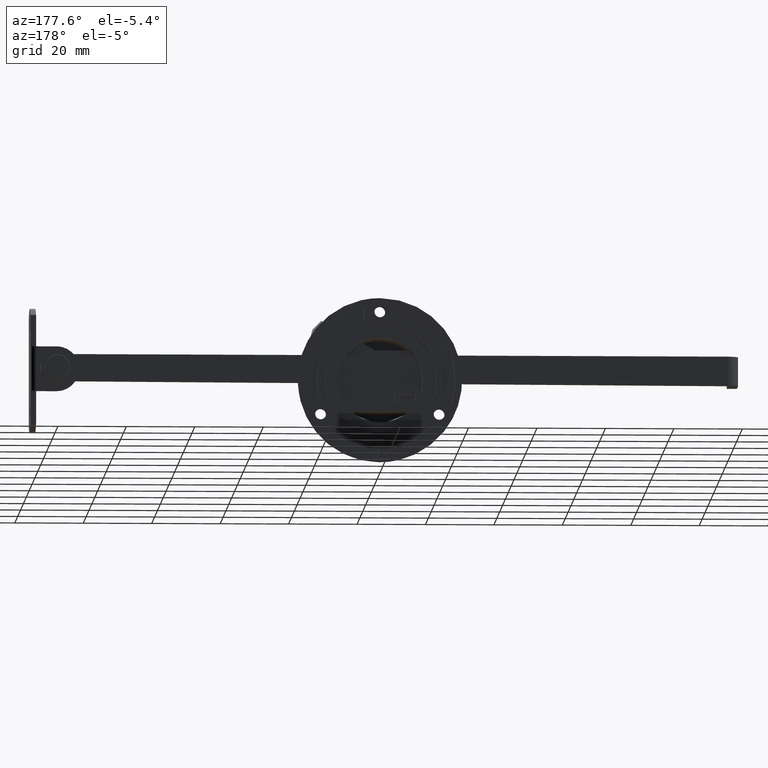
[diagram: clean part render]
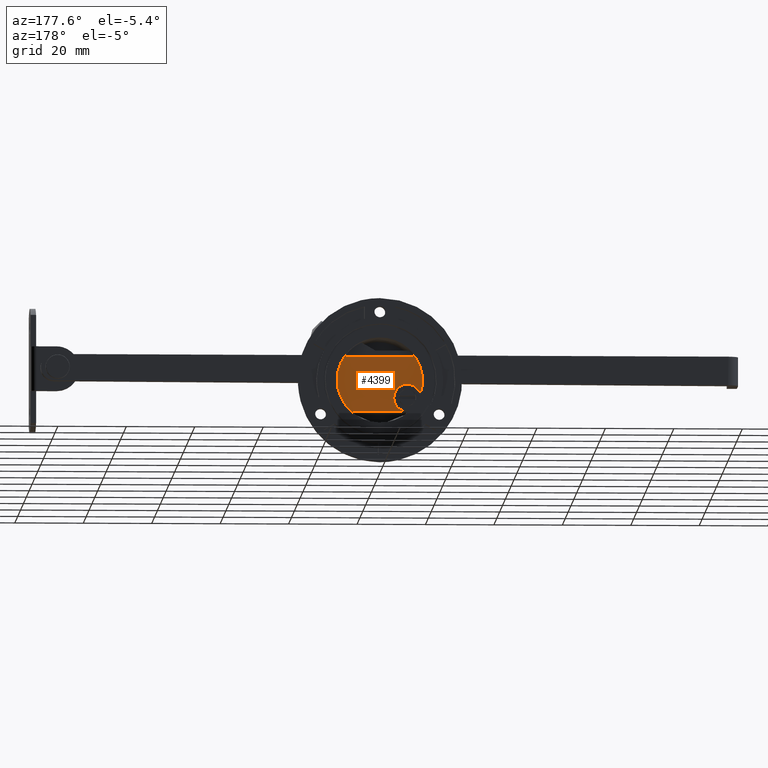
[diagram: same view with one face highlighted and labeled with its STEP entity id]
A machine part, auxiliary view. The second image highlights one B-rep face of the part: STEP entity #4399.
In plain terms, the highlighted face is a freeform B-spline surface patch.
Its self-contained STEP definition (entity closure, byte-faithful):
#4228=CARTESIAN_POINT('',(-9.367496997597531,-1.800000000000025,7.0));
#4229=VERTEX_POINT('',#4228);
#4230=CARTESIAN_POINT('',(9.367496997597531,-1.800000000000025,7.0));
#4231=VERTEX_POINT('',#4230);
#4232=CARTESIAN_POINT('',(-9.367496997597531,-1.800000000000025,7.0));
#4233=CARTESIAN_POINT('',(9.367496997597531,-1.800000000000025,7.0));
#4234=QUASI_UNIFORM_CURVE('',1,(#4232,#4233),.UNSPECIFIED.,.F.,.U.);
#4235=EDGE_CURVE('',#4229,#4231,#4234,.T.);
#4259=CARTESIAN_POINT('',(13.748749288366289,-1.800000000000000,-10.780364549011150));
#4260=CARTESIAN_POINT('',(-13.748737476144790,-1.800000000000000,-10.780364549011150));
#4261=CARTESIAN_POINT('',(13.748749288366289,-1.800000000000000,8.697031690652423));
#4262=CARTESIAN_POINT('',(-13.748737476144790,-1.800000000000000,8.697031690652423));
#4263=B_SPLINE_SURFACE_WITH_KNOTS('',1,1,((#4259,#4261),(#4260,#4262)),.UNSPECIFIED.,.F.,.F.,.U.,(2,2),(2,2),(0.0,27.497486764511070),(0.0,19.477396239663570),.UNSPECIFIED.);
#4264=CARTESIAN_POINT('',(9.757809372497450,-1.800000000000025,7.812500000000091));
#4265=VERTEX_POINT('',#4264);
#4266=CARTESIAN_POINT('',(9.367496997597531,-1.800000000000025,7.0));
#4267=CARTESIAN_POINT('',(9.461160465739139,-1.800000000000021,6.999700690481630));
#4268=CARTESIAN_POINT('',(9.601187570798683,-1.800000000000029,7.040598441206992));
#4269=CARTESIAN_POINT('',(9.754531742009673,-1.800000000000023,7.170333423752110));
#4270=CARTESIAN_POINT('',(9.835652643156934,-1.800000000000021,7.301690073976931));
#4271=CARTESIAN_POINT('',(9.874524035227598,-1.800000000000027,7.462446241235232));
#4272=CARTESIAN_POINT('',(9.860573453243497,-1.800000000000030,7.640105959682167));
#4273=CARTESIAN_POINT('',(9.801736126595841,-1.800000000000019,7.757755260388408));
#4274=CARTESIAN_POINT('',(9.757809372497450,-1.800000000000025,7.812500000000091));
#4275=B_SPLINE_CURVE_WITH_KNOTS('',3,(#4266,#4267,#4268,#4269,#4270,#4271,#4272,#4273,#4274),.UNSPECIFIED.,.F.,.U.,(4,1,1,1,1,1,4),(0.000001360351432,0.280800905464858,0.421253584632051,0.596665883798618,0.737052988665255,0.912618845139026,1.123193970378040),.UNSPECIFIED.);
#4276=EDGE_CURVE('',#4231,#4265,#4275,.T.);
#4277=ORIENTED_EDGE('',*,*,#4276,.T.);
#4278=CARTESIAN_POINT('',(7.636915780528740,-1.800000000000025,-9.895833333333300));
#4279=VERTEX_POINT('',#4278);
#4280=CARTESIAN_POINT('',(9.757809372497450,-1.800000000000025,7.812500000000091));
#4281=CARTESIAN_POINT('',(10.598819418913701,-1.800000000000027,6.763300552346773));
#4282=CARTESIAN_POINT('',(11.730600534383241,-1.800000000000024,4.755191665336257));
#4283=CARTESIAN_POINT('',(12.400330266114279,-1.800000000000026,2.026096756635784));
#4284=CARTESIAN_POINT('',(12.559807205238240,-1.800000000000027,-0.352051085783109));
#4285=CARTESIAN_POINT('',(12.343549053554989,-1.800000000000025,-2.369885014596377));
#4286=CARTESIAN_POINT('',(11.669071060630960,-1.800000000000038,-4.656947154563540));
#4287=CARTESIAN_POINT('',(10.652295942329470,-1.800000000000030,-6.706748263601316));
#4288=CARTESIAN_POINT('',(9.208570999974008,-1.800000000000005,-8.546554220246408));
#4289=CARTESIAN_POINT('',(8.128200915351224,-1.800000000000048,-9.516706921566355));
#4290=CARTESIAN_POINT('',(7.636915780528740,-1.800000000000025,-9.895833333333300));
#4291=B_SPLINE_CURVE_WITH_KNOTS('',3,(#4280,#4281,#4282,#4283,#4284,#4285,#4286,#4287,#4288,#4289,#4290),.UNSPECIFIED.,.F.,.U.,(4,1,1,1,1,1,1,1,4),(0.000000213880661,4.033739276745315,6.826346873541089,8.377833228340545,11.170357087889000,12.876938419077771,15.514404978092060,17.996711649892170,19.858423784066400),.UNSPECIFIED.);
#4292=EDGE_CURVE('',#4265,#4279,#4291,.T.);
#4293=ORIENTED_EDGE('',*,*,#4292,.T.);
#4294=CARTESIAN_POINT('',(7.331439149307590,-1.800000000000025,-9.0));
#4295=VERTEX_POINT('',#4294);
#4296=CARTESIAN_POINT('',(7.636915780528740,-1.800000000000025,-9.895833333333300));
#4297=CARTESIAN_POINT('',(7.719234123861531,-1.800000000000025,-9.832856451911674));
#4298=CARTESIAN_POINT('',(7.810910552513405,-1.800000000000025,-9.698431769080562));
#4299=CARTESIAN_POINT('',(7.841250616483046,-1.800000000000025,-9.477812824791055));
#4300=CARTESIAN_POINT('',(7.802453517688979,-1.800000000000025,-9.297368776515011));
#4301=CARTESIAN_POINT('',(7.698128810405038,-1.800000000000025,-9.145094617256225));
#4302=CARTESIAN_POINT('',(7.538353892712093,-1.800000000000028,-9.030759092029863));
#4303=CARTESIAN_POINT('',(7.409087621342753,-1.800000000000021,-8.999875583084283));
#4304=CARTESIAN_POINT('',(7.331439149307590,-1.800000000000025,-9.0));
#4305=B_SPLINE_CURVE_WITH_KNOTS('',3,(#4296,#4297,#4298,#4299,#4300,#4301,#4302,#4303,#4304),.UNSPECIFIED.,.F.,.U.,(4,1,1,1,1,1,4),(0.000001078117392,0.310620997221106,0.465965759118285,0.660059293032138,0.854168320935970,1.009545361192350,1.242475461224124),.UNSPECIFIED.);
#4306=EDGE_CURVE('',#4279,#4295,#4305,.T.);
#4307=ORIENTED_EDGE('',*,*,#4306,.T.);
#4308=CARTESIAN_POINT('',(-7.331439149307590,-1.800000000000025,-9.0));
#4309=VERTEX_POINT('',#4308);
#4310=CARTESIAN_POINT('',(7.331439149307590,-1.800000000000025,-9.0));
#4311=CARTESIAN_POINT('',(-7.331439149307590,-1.800000000000025,-9.0));
#4312=QUASI_UNIFORM_CURVE('',1,(#4310,#4311),.UNSPECIFIED.,.F.,.U.);
#4313=EDGE_CURVE('',#4295,#4309,#4312,.T.);
#4314=ORIENTED_EDGE('',*,*,#4313,.T.);
#4315=CARTESIAN_POINT('',(-7.636915780528760,-1.800000000000025,-9.895833333333329));
#4316=VERTEX_POINT('',#4315);
#4317=CARTESIAN_POINT('',(-7.331439149307590,-1.800000000000025,-9.0));
#4318=CARTESIAN_POINT('',(-7.448160763204919,-1.800000000000026,-8.999264351517784));
#4319=CARTESIAN_POINT('',(-7.615328171772999,-1.800000000000025,-9.061452058378677));
#4320=CARTESIAN_POINT('',(-7.761516816237790,-1.800000000000028,-9.229469745889547));
#4321=CARTESIAN_POINT('',(-7.823604665323523,-1.800000000000015,-9.373794460502682));
#4322=CARTESIAN_POINT('',(-7.841261110709699,-1.800000000000036,-9.556343619478881));
#4323=CARTESIAN_POINT('',(-7.783744808613415,-1.800000000000021,-9.747205610923544));
#4324=CARTESIAN_POINT('',(-7.688155796257371,-1.800000000000026,-9.856367345652370));
#4325=CARTESIAN_POINT('',(-7.636915780528760,-1.800000000000025,-9.895833333333329));
#4326=B_SPLINE_CURVE_WITH_KNOTS('',3,(#4317,#4318,#4319,#4320,#4321,#4322,#4323,#4324,#4325),.UNSPECIFIED.,.F.,.U.,(4,1,1,1,1,1,4),(0.000001078118032,0.349466345968186,0.504784076566911,0.660059293032380,0.815333301963064,1.048380380093650,1.242475461224110),.UNSPECIFIED.);
#4327=EDGE_CURVE('',#4309,#4316,#4326,.T.);
#4328=ORIENTED_EDGE('',*,*,#4327,.T.);
#4329=CARTESIAN_POINT('',(-8.749464821229202,-1.800000000000025,-8.927310084346379));
#4330=VERTEX_POINT('',#4329);
#4331=CARTESIAN_POINT('',(-7.636915780528762,-1.800000000000025,-9.895833333333332));
#4332=CARTESIAN_POINT('',(-8.221812768116436,-1.800000000000025,-9.444450525637301));
#4333=CARTESIAN_POINT('',(-8.749464821229216,-1.800000000000025,-8.927310084346400));
#4341=(BOUNDED_CURVE()B_SPLINE_CURVE(2,(#4331,#4332,#4333),.UNSPECIFIED.,.F.,.U.)CURVE()GEOMETRIC_REPRESENTATION_ITEM()QUASI_UNIFORM_CURVE()RATIONAL_B_SPLINE_CURVE((1.0,0.998257840318388,1.0))REPRESENTATION_ITEM(''));
#4342=EDGE_CURVE('',#4316,#4330,#4341,.T.);
#4343=ORIENTED_EDGE('',*,*,#4342,.T.);
#4344=CARTESIAN_POINT('',(-11.786031234764639,-1.800000000000025,-4.164068651349660));
#4345=VERTEX_POINT('',#4344);
#4346=CARTESIAN_POINT('',(-11.786031234764639,-1.800000000000025,-4.164068651349660));
#4347=CARTESIAN_POINT('',(-11.700901284270820,-1.800000000000023,-3.819200730417689));
#4348=CARTESIAN_POINT('',(-11.479636047127750,-1.800000000000030,-3.264132245525404));
#4349=CARTESIAN_POINT('',(-10.937361910006899,-1.800000000000021,-2.482603139014747));
#4350=CARTESIAN_POINT('',(-10.352960874318880,-1.800000000000031,-1.952854581079033));
#4351=CARTESIAN_POINT('',(-9.573000675856262,-1.800000000000021,-1.499037977131632));
#4352=CARTESIAN_POINT('',(-8.800889937963618,-1.800000000000041,-1.245437705674299));
#4353=CARTESIAN_POINT('',(-7.733249924146370,-1.800000000000016,-1.158976422249266));
#4354=CARTESIAN_POINT('',(-6.718950668313942,-1.800000000000035,-1.356916689629223));
#4355=CARTESIAN_POINT('',(-5.642339689587560,-1.800000000000007,-1.922957007231587));
#4356=CARTESIAN_POINT('',(-4.818402504109767,-1.800000000000055,-2.730659430072248));
#4357=CARTESIAN_POINT('',(-4.313693568337235,-1.800000000000006,-3.709206796694140));
#4358=CARTESIAN_POINT('',(-4.107161927940558,-1.800000000000044,-4.589748284975424));
#4359=CARTESIAN_POINT('',(-4.077413776037783,-1.800000000000013,-5.565151986065345));
#4360=CARTESIAN_POINT('',(-4.343611707283468,-1.800000000000029,-6.638236782577704));
#4361=CARTESIAN_POINT('',(-5.019441277870427,-1.800000000000025,-7.711821274433063));
#4362=CARTESIAN_POINT('',(-5.846122714129581,-1.800000000000024,-8.406911031649781));
#4363=CARTESIAN_POINT('',(-6.795914048893822,-1.800000000000026,-8.848275838938054));
#4364=CARTESIAN_POINT('',(-7.733285118198818,-1.800000000000024,-9.036587653776731));
#4365=CARTESIAN_POINT('',(-8.424139164376783,-1.800000000000025,-8.991089010546283));
#4366=CARTESIAN_POINT('',(-8.749464821229202,-1.800000000000025,-8.927310084346379));
#4367=B_SPLINE_CURVE_WITH_KNOTS('',3,(#4346,#4347,#4348,#4349,#4350,#4351,#4352,#4353,#4354,#4355,#4356,#4357,#4358,#4359,#4360,#4361,#4362,#4363,#4364,#4365,#4366),.UNSPECIFIED.,.F.,.U.,(4,1,1,1,1,1,1,1,1,1,1,1,1,1,1,1,1,1,4),(0.000001740859194,1.065636385995603,1.776104184177370,2.841813551975722,3.410195003809292,4.475929387691172,5.257470857157992,6.607186158850642,7.530760889700328,8.880643010007072,10.017383105702990,10.798944739215040,11.580447253940189,12.930107802984571,14.066886104715261,15.345766669228141,16.127316104129640,17.193010466871360,18.187568462198431),.UNSPECIFIED.);
#4368=EDGE_CURVE('',#4345,#4330,#4367,.T.);
#4369=ORIENTED_EDGE('',*,*,#4368,.F.);
#4370=CARTESIAN_POINT('',(-9.757809372497421,-1.800000000000025,7.812500000000000));
#4371=VERTEX_POINT('',#4370);
#4372=CARTESIAN_POINT('',(-11.786031234764661,-1.800000000000025,-4.164068651349669));
#4373=CARTESIAN_POINT('',(-14.100904194556804,-1.800000000000025,2.387976305877187));
#4374=CARTESIAN_POINT('',(-9.757809372497521,-1.800000000000025,7.812500000000071));
#4382=(BOUNDED_CURVE()B_SPLINE_CURVE(2,(#4372,#4373,#4374),.UNSPECIFIED.,.F.,.U.)CURVE()GEOMETRIC_REPRESENTATION_ITEM()QUASI_UNIFORM_CURVE()RATIONAL_B_SPLINE_CURVE((1.0,0.874023449952623,1.0))REPRESENTATION_ITEM(''));
#4383=EDGE_CURVE('',#4345,#4371,#4382,.T.);
#4384=ORIENTED_EDGE('',*,*,#4383,.T.);
#4385=CARTESIAN_POINT('',(-9.757809372497421,-1.800000000000025,7.812500000000000));
#4386=CARTESIAN_POINT('',(-9.816544954838994,-1.800000000000024,7.739570178928894));
#4387=CARTESIAN_POINT('',(-9.876863949245394,-1.800000000000027,7.593451602807282));
#4388=CARTESIAN_POINT('',(-9.864274515996421,-1.800000000000023,7.391890377482857));
#4389=CARTESIAN_POINT('',(-9.798958897085759,-1.800000000000028,7.227153986557200));
#4390=CARTESIAN_POINT('',(-9.647782019893379,-1.800000000000021,7.057529668611038));
#4391=CARTESIAN_POINT('',(-9.472887625040762,-1.800000000000031,6.999542426446105));
#4392=CARTESIAN_POINT('',(-9.367496997597531,-1.800000000000025,7.0));
#4393=B_SPLINE_CURVE_WITH_KNOTS('',3,(#4385,#4386,#4387,#4388,#4389,#4390,#4391,#4392),.UNSPECIFIED.,.F.,.U.,(4,1,1,1,1,4),(0.000001360350772,0.280800905464389,0.456353240675474,0.596665883798327,0.807290217133478,1.123193970377993),.UNSPECIFIED.);
#4394=EDGE_CURVE('',#4371,#4229,#4393,.T.);
#4395=ORIENTED_EDGE('',*,*,#4394,.T.);
#4396=ORIENTED_EDGE('',*,*,#4235,.T.);
#4397=EDGE_LOOP('',(#4277,#4293,#4307,#4314,#4328,#4343,#4369,#4384,#4395,#4396));
#4398=FACE_OUTER_BOUND('',#4397,.T.);
#4399=ADVANCED_FACE('',(#4398),#4263,.T.);